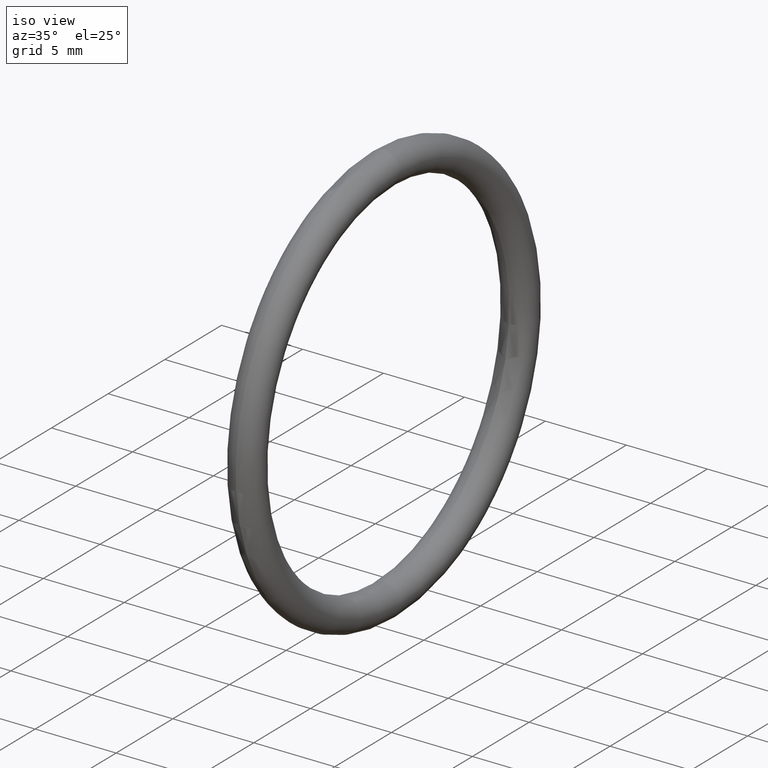
[diagram: clean part render]
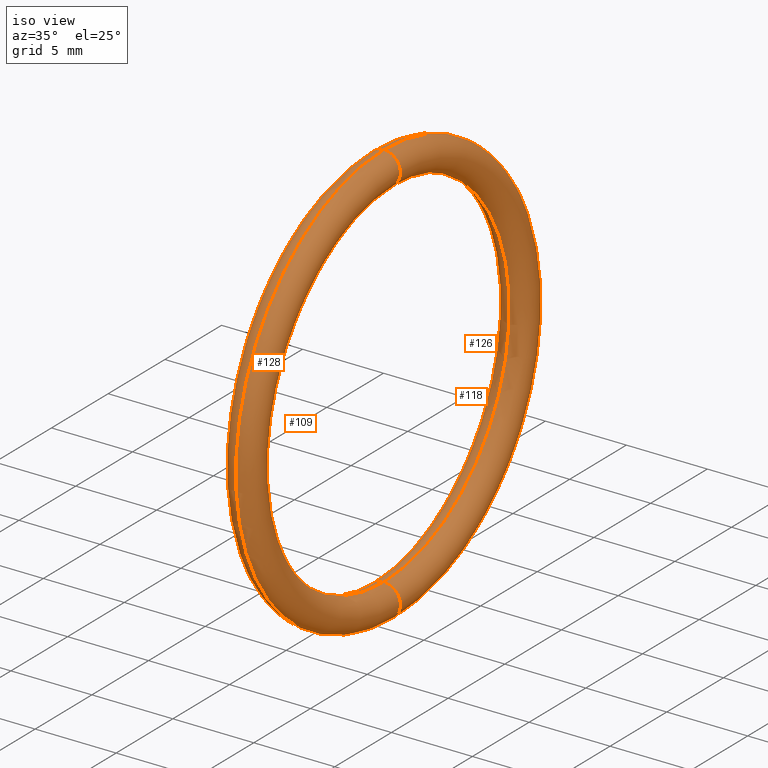
[diagram: same view with one multi-face feature highlighted, each face labeled with its STEP entity id]
A machine part, iso view. The highlighted faces form ONE feature: a constant-radius fillet chain: 4 tangent blend faces with common blend radius 1.016 mm. The faces share edges in the B-rep.
Their STEP definitions:
[1] entity #126 (Torus):
#1 = CARTESIAN_POINT ( 'NONE',  ( 0.1000000000000000700, 0.0000000000000000000, 0.5150000000000000100 ) ) ;
#3 = CARTESIAN_POINT ( 'NONE',  ( 0.1000000000000000700, 6.306931015608868600E-017, -0.5150000000000000100 ) ) ;
#5 = CARTESIAN_POINT ( 'NONE',  ( 0.1000000000000000700, 0.0000000000000000000, 0.4350000000000000000 ) ) ;
#12 = CARTESIAN_POINT ( 'NONE',  ( 0.1000000000000000700, 5.327213576290986400E-017, -0.4350000000000000000 ) ) ;
#104 = ORIENTED_EDGE ( 'NONE', *, *, #105, .F. ) ;
#105 = EDGE_CURVE ( 'NONE', #137, #136, #160, .T. ) ;
#106 = ORIENTED_EDGE ( 'NONE', *, *, #125, .T. ) ;
#107 = ORIENTED_EDGE ( 'NONE', *, *, #108, .T. ) ;
#108 = EDGE_CURVE ( 'NONE', #133, #132, #155, .T. ) ;
#122 = EDGE_CURVE ( 'NONE', #136, #132, #188, .T. ) ;
#125 = EDGE_CURVE ( 'NONE', #137, #133, #183, .T. ) ;
#126 = ADVANCED_FACE ( 'NONE', ( #178 ), #177, .T. ) ;
#132 = VERTEX_POINT ( 'NONE', #3 ) ;
#133 = VERTEX_POINT ( 'NONE', #12 ) ;
#136 = VERTEX_POINT ( 'NONE', #1 ) ;
#137 = VERTEX_POINT ( 'NONE', #5 ) ;
#152 = DIRECTION ( 'NONE',  ( 0.0000000000000000000, -1.224646799147353000E-016, 1.000000000000000000 ) ) ;
#153 = DIRECTION ( 'NONE',  ( 0.0000000000000000000, 1.000000000000000000, 1.224646799147353200E-016 ) ) ;
#154 = AXIS2_PLACEMENT_3D ( 'NONE', #161, #153, #152 ) ;
#155 = CIRCLE ( 'NONE', #154, 0.03999999999999998000 ) ;
#156 = DIRECTION ( 'NONE',  ( 0.0000000000000000000, 0.0000000000000000000, -1.000000000000000000 ) ) ;
#157 = DIRECTION ( 'NONE',  ( 0.0000000000000000000, -1.000000000000000000, 0.0000000000000000000 ) ) ;
#158 = CARTESIAN_POINT ( 'NONE',  ( 0.1000000000000000700, 0.0000000000000000000, 0.4749999999999999800 ) ) ;
#159 = AXIS2_PLACEMENT_3D ( 'NONE', #158, #157, #156 ) ;
#160 = CIRCLE ( 'NONE', #159, 0.03999999999999998000 ) ;
#161 = CARTESIAN_POINT ( 'NONE',  ( 0.1000000000000000700, 5.817072295949927200E-017, -0.4749999999999999800 ) ) ;
#164 = EDGE_LOOP ( 'NONE', ( #165, #104, #106, #107 ) ) ;
#165 = ORIENTED_EDGE ( 'NONE', *, *, #122, .F. ) ;
#173 = DIRECTION ( 'NONE',  ( 0.0000000000000000000, 0.0000000000000000000, 1.000000000000000000 ) ) ;
#174 = DIRECTION ( 'NONE',  ( -1.000000000000000000, 0.0000000000000000000, 0.0000000000000000000 ) ) ;
#175 = CARTESIAN_POINT ( 'NONE',  ( 0.1000000000000000700, 0.0000000000000000000, 0.0000000000000000000 ) ) ;
#176 = AXIS2_PLACEMENT_3D ( 'NONE', #175, #174, #173 ) ;
#177 = TOROIDAL_SURFACE ( 'NONE', #176, 0.4749999999999999800, 0.04000000000000000100 ) ;
#178 = FACE_OUTER_BOUND ( 'NONE', #164, .T. ) ;
#179 = DIRECTION ( 'NONE',  ( 0.0000000000000000000, 0.0000000000000000000, 1.000000000000000000 ) ) ;
#180 = DIRECTION ( 'NONE',  ( -1.000000000000000000, 0.0000000000000000000, 0.0000000000000000000 ) ) ;
#181 = CARTESIAN_POINT ( 'NONE',  ( 0.1000000000000000700, 0.0000000000000000000, 0.0000000000000000000 ) ) ;
#182 = AXIS2_PLACEMENT_3D ( 'NONE', #181, #180, #179 ) ;
#183 = CIRCLE ( 'NONE', #182, 0.4350000000000000000 ) ;
#184 = DIRECTION ( 'NONE',  ( 0.0000000000000000000, 0.0000000000000000000, 1.000000000000000000 ) ) ;
#185 = DIRECTION ( 'NONE',  ( -1.000000000000000000, 0.0000000000000000000, 0.0000000000000000000 ) ) ;
#186 = CARTESIAN_POINT ( 'NONE',  ( 0.1000000000000000700, 0.0000000000000000000, 0.0000000000000000000 ) ) ;
#187 = AXIS2_PLACEMENT_3D ( 'NONE', #186, #185, #184 ) ;
#188 = CIRCLE ( 'NONE', #187, 0.5150000000000000100 ) ;
[2] entity #109 (Torus):
#1 = CARTESIAN_POINT ( 'NONE',  ( 0.1000000000000000700, 0.0000000000000000000, 0.5150000000000000100 ) ) ;
#3 = CARTESIAN_POINT ( 'NONE',  ( 0.1000000000000000700, 6.306931015608868600E-017, -0.5150000000000000100 ) ) ;
#5 = CARTESIAN_POINT ( 'NONE',  ( 0.1000000000000000700, 0.0000000000000000000, 0.4350000000000000000 ) ) ;
#6 = DIRECTION ( 'NONE',  ( 0.0000000000000000000, 0.0000000000000000000, 1.000000000000000000 ) ) ;
#7 = DIRECTION ( 'NONE',  ( -1.000000000000000000, 0.0000000000000000000, 0.0000000000000000000 ) ) ;
#8 = CARTESIAN_POINT ( 'NONE',  ( 0.1000000000000000700, 0.0000000000000000000, 0.0000000000000000000 ) ) ;
#9 = AXIS2_PLACEMENT_3D ( 'NONE', #8, #7, #6 ) ;
#10 = CIRCLE ( 'NONE', #9, 0.5150000000000000100 ) ;
#12 = CARTESIAN_POINT ( 'NONE',  ( 0.1000000000000000700, 5.327213576290986400E-017, -0.4350000000000000000 ) ) ;
#105 = EDGE_CURVE ( 'NONE', #137, #136, #160, .T. ) ;
#108 = EDGE_CURVE ( 'NONE', #133, #132, #155, .T. ) ;
#109 = ADVANCED_FACE ( 'NONE', ( #151 ), #150, .T. ) ;
#110 = EDGE_LOOP ( 'NONE', ( #111, #112, #113, #162 ) ) ;
#111 = ORIENTED_EDGE ( 'NONE', *, *, #135, .F. ) ;
#112 = ORIENTED_EDGE ( 'NONE', *, *, #108, .F. ) ;
#113 = ORIENTED_EDGE ( 'NONE', *, *, #117, .T. ) ;
#117 = EDGE_CURVE ( 'NONE', #133, #137, #139, .T. ) ;
#132 = VERTEX_POINT ( 'NONE', #3 ) ;
#133 = VERTEX_POINT ( 'NONE', #12 ) ;
#135 = EDGE_CURVE ( 'NONE', #132, #136, #10, .T. ) ;
#136 = VERTEX_POINT ( 'NONE', #1 ) ;
#137 = VERTEX_POINT ( 'NONE', #5 ) ;
#138 = AXIS2_PLACEMENT_3D ( 'NONE', #196, #195, #194 ) ;
#139 = CIRCLE ( 'NONE', #138, 0.4350000000000000000 ) ;
#145 = DIRECTION ( 'NONE',  ( 0.0000000000000000000, 0.0000000000000000000, 1.000000000000000000 ) ) ;
#146 = DIRECTION ( 'NONE',  ( -1.000000000000000000, 0.0000000000000000000, 0.0000000000000000000 ) ) ;
#147 = CARTESIAN_POINT ( 'NONE',  ( 0.1000000000000000700, 0.0000000000000000000, 0.0000000000000000000 ) ) ;
#148 = AXIS2_PLACEMENT_3D ( 'NONE', #147, #146, #145 ) ;
#150 = TOROIDAL_SURFACE ( 'NONE', #148, 0.4749999999999999800, 0.04000000000000000100 ) ;
#151 = FACE_OUTER_BOUND ( 'NONE', #110, .T. ) ;
#152 = DIRECTION ( 'NONE',  ( 0.0000000000000000000, -1.224646799147353000E-016, 1.000000000000000000 ) ) ;
#153 = DIRECTION ( 'NONE',  ( 0.0000000000000000000, 1.000000000000000000, 1.224646799147353200E-016 ) ) ;
#154 = AXIS2_PLACEMENT_3D ( 'NONE', #161, #153, #152 ) ;
#155 = CIRCLE ( 'NONE', #154, 0.03999999999999998000 ) ;
#156 = DIRECTION ( 'NONE',  ( 0.0000000000000000000, 0.0000000000000000000, -1.000000000000000000 ) ) ;
#157 = DIRECTION ( 'NONE',  ( 0.0000000000000000000, -1.000000000000000000, 0.0000000000000000000 ) ) ;
#158 = CARTESIAN_POINT ( 'NONE',  ( 0.1000000000000000700, 0.0000000000000000000, 0.4749999999999999800 ) ) ;
#159 = AXIS2_PLACEMENT_3D ( 'NONE', #158, #157, #156 ) ;
#160 = CIRCLE ( 'NONE', #159, 0.03999999999999998000 ) ;
#161 = CARTESIAN_POINT ( 'NONE',  ( 0.1000000000000000700, 5.817072295949927200E-017, -0.4749999999999999800 ) ) ;
#162 = ORIENTED_EDGE ( 'NONE', *, *, #105, .T. ) ;
#194 = DIRECTION ( 'NONE',  ( 0.0000000000000000000, 0.0000000000000000000, 1.000000000000000000 ) ) ;
#195 = DIRECTION ( 'NONE',  ( -1.000000000000000000, 0.0000000000000000000, 0.0000000000000000000 ) ) ;
#196 = CARTESIAN_POINT ( 'NONE',  ( 0.1000000000000000700, 0.0000000000000000000, 0.0000000000000000000 ) ) ;
[3] entity #128 (Torus):
#1 = CARTESIAN_POINT ( 'NONE',  ( 0.1000000000000000700, 0.0000000000000000000, 0.5150000000000000100 ) ) ;
#2 = AXIS2_PLACEMENT_3D ( 'NONE', #11, #13, #4 ) ;
#3 = CARTESIAN_POINT ( 'NONE',  ( 0.1000000000000000700, 6.306931015608868600E-017, -0.5150000000000000100 ) ) ;
#4 = DIRECTION ( 'NONE',  ( 0.0000000000000000000, -1.224646799147353000E-016, 1.000000000000000000 ) ) ;
#5 = CARTESIAN_POINT ( 'NONE',  ( 0.1000000000000000700, 0.0000000000000000000, 0.4350000000000000000 ) ) ;
#6 = DIRECTION ( 'NONE',  ( 0.0000000000000000000, 0.0000000000000000000, 1.000000000000000000 ) ) ;
#7 = DIRECTION ( 'NONE',  ( -1.000000000000000000, 0.0000000000000000000, 0.0000000000000000000 ) ) ;
#8 = CARTESIAN_POINT ( 'NONE',  ( 0.1000000000000000700, 0.0000000000000000000, 0.0000000000000000000 ) ) ;
#9 = AXIS2_PLACEMENT_3D ( 'NONE', #8, #7, #6 ) ;
#10 = CIRCLE ( 'NONE', #9, 0.5150000000000000100 ) ;
#11 = CARTESIAN_POINT ( 'NONE',  ( 0.1000000000000000700, 5.817072295949927200E-017, -0.4749999999999999800 ) ) ;
#12 = CARTESIAN_POINT ( 'NONE',  ( 0.1000000000000000700, 5.327213576290986400E-017, -0.4350000000000000000 ) ) ;
#13 = DIRECTION ( 'NONE',  ( 0.0000000000000000000, 1.000000000000000000, 1.224646799147353200E-016 ) ) ;
#114 = ORIENTED_EDGE ( 'NONE', *, *, #115, .T. ) ;
#115 = EDGE_CURVE ( 'NONE', #136, #137, #144, .T. ) ;
#116 = ORIENTED_EDGE ( 'NONE', *, *, #117, .F. ) ;
#117 = EDGE_CURVE ( 'NONE', #133, #137, #139, .T. ) ;
#128 = ADVANCED_FACE ( 'NONE', ( #172 ), #171, .T. ) ;
#129 = EDGE_LOOP ( 'NONE', ( #130, #134, #114, #116 ) ) ;
#130 = ORIENTED_EDGE ( 'NONE', *, *, #131, .F. ) ;
#131 = EDGE_CURVE ( 'NONE', #132, #133, #166, .T. ) ;
#132 = VERTEX_POINT ( 'NONE', #3 ) ;
#133 = VERTEX_POINT ( 'NONE', #12 ) ;
#134 = ORIENTED_EDGE ( 'NONE', *, *, #135, .T. ) ;
#135 = EDGE_CURVE ( 'NONE', #132, #136, #10, .T. ) ;
#136 = VERTEX_POINT ( 'NONE', #1 ) ;
#137 = VERTEX_POINT ( 'NONE', #5 ) ;
#138 = AXIS2_PLACEMENT_3D ( 'NONE', #196, #195, #194 ) ;
#139 = CIRCLE ( 'NONE', #138, 0.4350000000000000000 ) ;
#141 = DIRECTION ( 'NONE',  ( 0.0000000000000000000, 0.0000000000000000000, -1.000000000000000000 ) ) ;
#142 = DIRECTION ( 'NONE',  ( 0.0000000000000000000, -1.000000000000000000, 0.0000000000000000000 ) ) ;
#143 = AXIS2_PLACEMENT_3D ( 'NONE', #149, #142, #141 ) ;
#144 = CIRCLE ( 'NONE', #143, 0.03999999999999998000 ) ;
#149 = CARTESIAN_POINT ( 'NONE',  ( 0.1000000000000000700, 0.0000000000000000000, 0.4749999999999999800 ) ) ;
#166 = CIRCLE ( 'NONE', #2, 0.03999999999999998000 ) ;
#167 = DIRECTION ( 'NONE',  ( 0.0000000000000000000, 0.0000000000000000000, 1.000000000000000000 ) ) ;
#168 = DIRECTION ( 'NONE',  ( -1.000000000000000000, 0.0000000000000000000, 0.0000000000000000000 ) ) ;
#169 = CARTESIAN_POINT ( 'NONE',  ( 0.1000000000000000700, 0.0000000000000000000, 0.0000000000000000000 ) ) ;
#170 = AXIS2_PLACEMENT_3D ( 'NONE', #169, #168, #167 ) ;
#171 = TOROIDAL_SURFACE ( 'NONE', #170, 0.4749999999999999800, 0.04000000000000000100 ) ;
#172 = FACE_OUTER_BOUND ( 'NONE', #129, .T. ) ;
#194 = DIRECTION ( 'NONE',  ( 0.0000000000000000000, 0.0000000000000000000, 1.000000000000000000 ) ) ;
#195 = DIRECTION ( 'NONE',  ( -1.000000000000000000, 0.0000000000000000000, 0.0000000000000000000 ) ) ;
#196 = CARTESIAN_POINT ( 'NONE',  ( 0.1000000000000000700, 0.0000000000000000000, 0.0000000000000000000 ) ) ;
[4] entity #118 (Torus):
#1 = CARTESIAN_POINT ( 'NONE',  ( 0.1000000000000000700, 0.0000000000000000000, 0.5150000000000000100 ) ) ;
#2 = AXIS2_PLACEMENT_3D ( 'NONE', #11, #13, #4 ) ;
#3 = CARTESIAN_POINT ( 'NONE',  ( 0.1000000000000000700, 6.306931015608868600E-017, -0.5150000000000000100 ) ) ;
#4 = DIRECTION ( 'NONE',  ( 0.0000000000000000000, -1.224646799147353000E-016, 1.000000000000000000 ) ) ;
#5 = CARTESIAN_POINT ( 'NONE',  ( 0.1000000000000000700, 0.0000000000000000000, 0.4350000000000000000 ) ) ;
#11 = CARTESIAN_POINT ( 'NONE',  ( 0.1000000000000000700, 5.817072295949927200E-017, -0.4749999999999999800 ) ) ;
#12 = CARTESIAN_POINT ( 'NONE',  ( 0.1000000000000000700, 5.327213576290986400E-017, -0.4350000000000000000 ) ) ;
#13 = DIRECTION ( 'NONE',  ( 0.0000000000000000000, 1.000000000000000000, 1.224646799147353200E-016 ) ) ;
#115 = EDGE_CURVE ( 'NONE', #136, #137, #144, .T. ) ;
#118 = ADVANCED_FACE ( 'NONE', ( #140 ), #192, .T. ) ;
#119 = EDGE_LOOP ( 'NONE', ( #120, #121, #123, #124 ) ) ;
#120 = ORIENTED_EDGE ( 'NONE', *, *, #115, .F. ) ;
#121 = ORIENTED_EDGE ( 'NONE', *, *, #122, .T. ) ;
#122 = EDGE_CURVE ( 'NONE', #136, #132, #188, .T. ) ;
#123 = ORIENTED_EDGE ( 'NONE', *, *, #131, .T. ) ;
#124 = ORIENTED_EDGE ( 'NONE', *, *, #125, .F. ) ;
#125 = EDGE_CURVE ( 'NONE', #137, #133, #183, .T. ) ;
#131 = EDGE_CURVE ( 'NONE', #132, #133, #166, .T. ) ;
#132 = VERTEX_POINT ( 'NONE', #3 ) ;
#133 = VERTEX_POINT ( 'NONE', #12 ) ;
#136 = VERTEX_POINT ( 'NONE', #1 ) ;
#137 = VERTEX_POINT ( 'NONE', #5 ) ;
#140 = FACE_OUTER_BOUND ( 'NONE', #119, .T. ) ;
#141 = DIRECTION ( 'NONE',  ( 0.0000000000000000000, 0.0000000000000000000, -1.000000000000000000 ) ) ;
#142 = DIRECTION ( 'NONE',  ( 0.0000000000000000000, -1.000000000000000000, 0.0000000000000000000 ) ) ;
#143 = AXIS2_PLACEMENT_3D ( 'NONE', #149, #142, #141 ) ;
#144 = CIRCLE ( 'NONE', #143, 0.03999999999999998000 ) ;
#149 = CARTESIAN_POINT ( 'NONE',  ( 0.1000000000000000700, 0.0000000000000000000, 0.4749999999999999800 ) ) ;
#166 = CIRCLE ( 'NONE', #2, 0.03999999999999998000 ) ;
#179 = DIRECTION ( 'NONE',  ( 0.0000000000000000000, 0.0000000000000000000, 1.000000000000000000 ) ) ;
#180 = DIRECTION ( 'NONE',  ( -1.000000000000000000, 0.0000000000000000000, 0.0000000000000000000 ) ) ;
#181 = CARTESIAN_POINT ( 'NONE',  ( 0.1000000000000000700, 0.0000000000000000000, 0.0000000000000000000 ) ) ;
#182 = AXIS2_PLACEMENT_3D ( 'NONE', #181, #180, #179 ) ;
#183 = CIRCLE ( 'NONE', #182, 0.4350000000000000000 ) ;
#184 = DIRECTION ( 'NONE',  ( 0.0000000000000000000, 0.0000000000000000000, 1.000000000000000000 ) ) ;
#185 = DIRECTION ( 'NONE',  ( -1.000000000000000000, 0.0000000000000000000, 0.0000000000000000000 ) ) ;
#186 = CARTESIAN_POINT ( 'NONE',  ( 0.1000000000000000700, 0.0000000000000000000, 0.0000000000000000000 ) ) ;
#187 = AXIS2_PLACEMENT_3D ( 'NONE', #186, #185, #184 ) ;
#188 = CIRCLE ( 'NONE', #187, 0.5150000000000000100 ) ;
#189 = DIRECTION ( 'NONE',  ( 0.0000000000000000000, 0.0000000000000000000, 1.000000000000000000 ) ) ;
#190 = DIRECTION ( 'NONE',  ( -1.000000000000000000, 0.0000000000000000000, 0.0000000000000000000 ) ) ;
#191 = AXIS2_PLACEMENT_3D ( 'NONE', #193, #190, #189 ) ;
#192 = TOROIDAL_SURFACE ( 'NONE', #191, 0.4749999999999999800, 0.04000000000000000100 ) ;
#193 = CARTESIAN_POINT ( 'NONE',  ( 0.1000000000000000700, 0.0000000000000000000, 0.0000000000000000000 ) ) ;